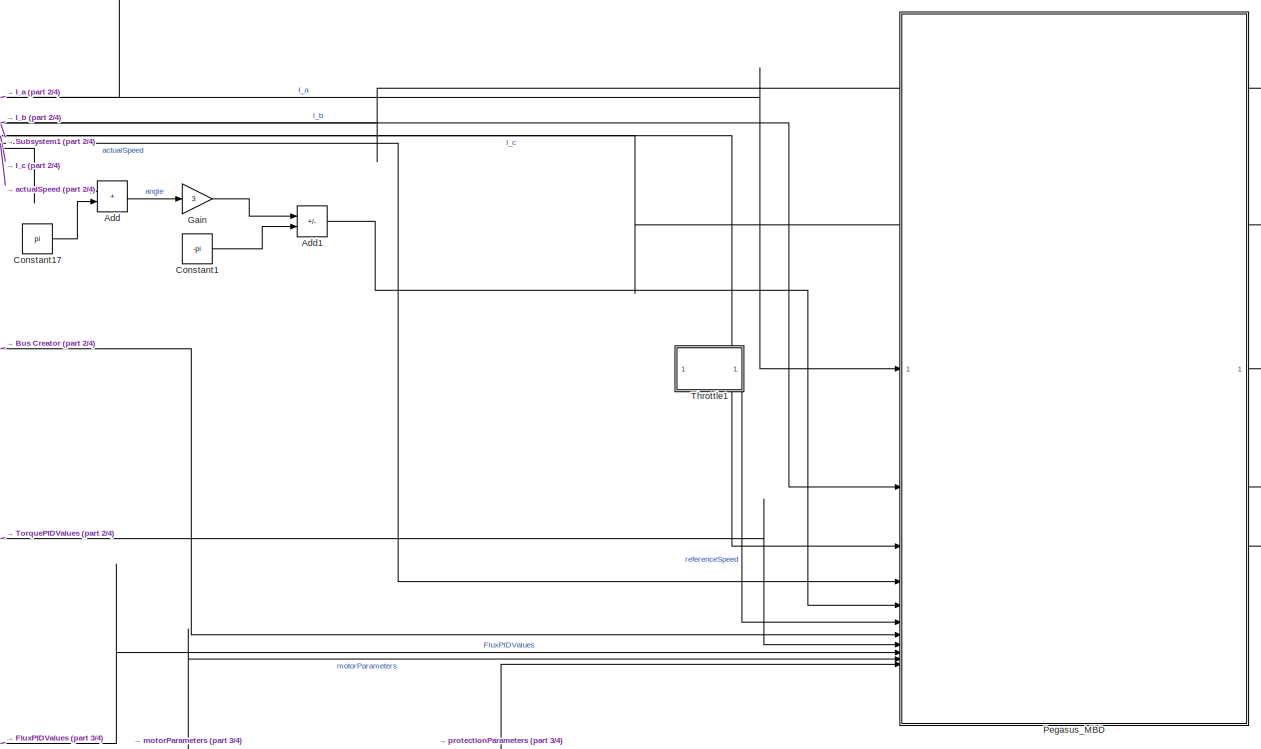
[diagram: root canvas - part 1/4, top center region]
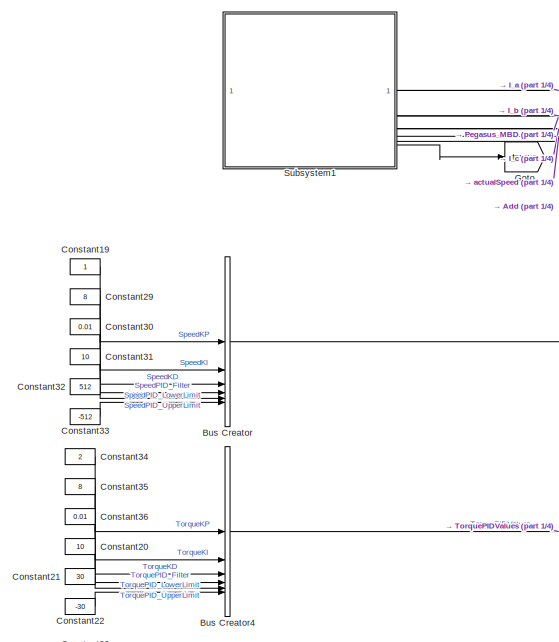
[diagram: root canvas - part 2/4, top left region]
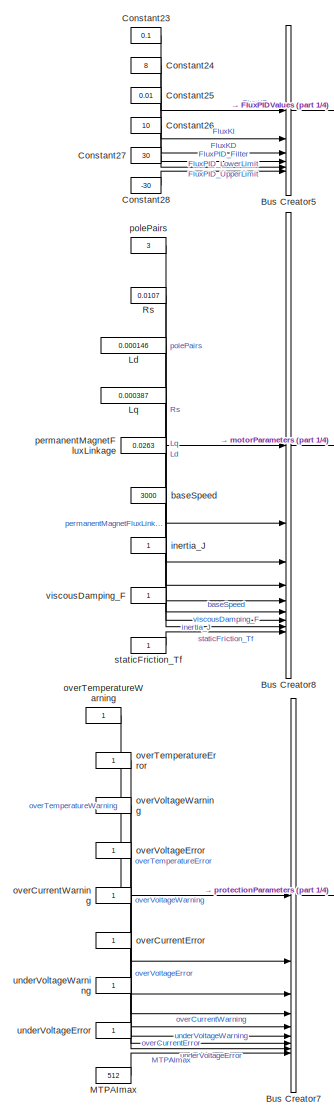
[diagram: root canvas - part 3/4, bottom left region]
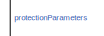
[diagram: root canvas - part 4/4, central region]
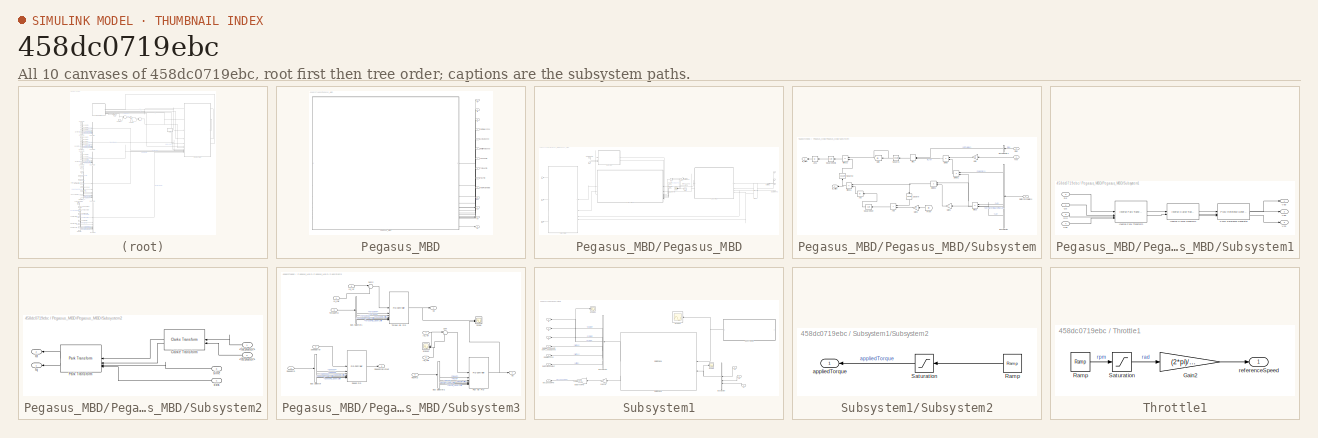
[diagram: thumbnail index - all 10 canvases of the model, root first then tree order]
MODEL slx_458dc0719ebc
KIND model
CONFIG AbsTol = auto
CONFIG EnableMultiTasking = off
CONFIG FixedStep = 10e-6
CONFIG MaxStep = auto
CONFIG MinStep = auto
CONFIG RelTol = 1e-3
CONFIG SampleTimeConstraint = Unconstrained
CONFIG SolverName = ode4
CONFIG StartTime = 0.0
CONFIG StopTime = 100
BLOCK [Sum] Add
  IconShape = rectangular
BLOCK [Sum] Add1
  IconShape = rectangular
  Inputs = +-
BLOCK [BusCreator] Bus Creator
  DisplayOption = bar
  InheritFromInputs = on
  Inputs = 6
BLOCK [BusCreator] Bus Creator4
  DisplayOption = bar
  InheritFromInputs = on
  Inputs = 6
BLOCK [BusCreator] Bus Creator5
  DisplayOption = bar
  InheritFromInputs = on
  Inputs = 6
BLOCK [BusCreator] Bus Creator7
  DisplayOption = bar
  InheritFromInputs = on
  Inputs = 9
BLOCK [BusCreator] Bus Creator8
  DisplayOption = bar
  InheritFromInputs = on
  Inputs = 9
BLOCK [Constant] Constant1
  OutDataTypeStr = single
  Value = -pi
BLOCK [Constant] Constant17
  OutDataTypeStr = single
  Value = pi
BLOCK [Constant] Constant19
BLOCK [Constant] Constant20
  Value = 10
BLOCK [Constant] Constant21
  Value = 30
BLOCK [Constant] Constant22
  Value = -30
BLOCK [Constant] Constant23
  Value = 0.1
BLOCK [Constant] Constant24
  Value = 8
BLOCK [Constant] Constant25
  Value = 0.01
BLOCK [Constant] Constant26
  Value = 10
BLOCK [Constant] Constant27
  Value = 30
BLOCK [Constant] Constant28
  Value = -30
BLOCK [Constant] Constant29
  Value = 8
BLOCK [Constant] Constant30
  Value = 0.01
BLOCK [Constant] Constant31
  Value = 10
BLOCK [Constant] Constant32
  Value = 512
BLOCK [Constant] Constant33
  Value = -512
BLOCK [Constant] Constant34
  Value = 2
BLOCK [Constant] Constant35
  Value = 8
BLOCK [Constant] Constant36
  Value = 0.01
BLOCK [Gain] Gain
  Gain = 3
BLOCK [Goto] Goto
  GotoTag = torque
  TagVisibility = global
BLOCK [Constant] Ld
  Value = 0.000146
BLOCK [Constant] Lq
  Value = 0.000387
BLOCK [Constant] MTPAImax
  Value = 512
BLOCK [SubSystem] Pegasus_MBD
BLOCK [Inport] Pegasus_MBD/FluxPID
  NameLocation = top
  Port = 9
BLOCK [Inport] Pegasus_MBD/Ia
  NameLocation = top
BLOCK [Inport] Pegasus_MBD/Ib
  NameLocation = top
  Port = 2
BLOCK [Inport] Pegasus_MBD/Ic
  NameLocation = top
  Port = 3
BLOCK [Inport] Pegasus_MBD/Imax
  NameLocation = top
  Port = 11
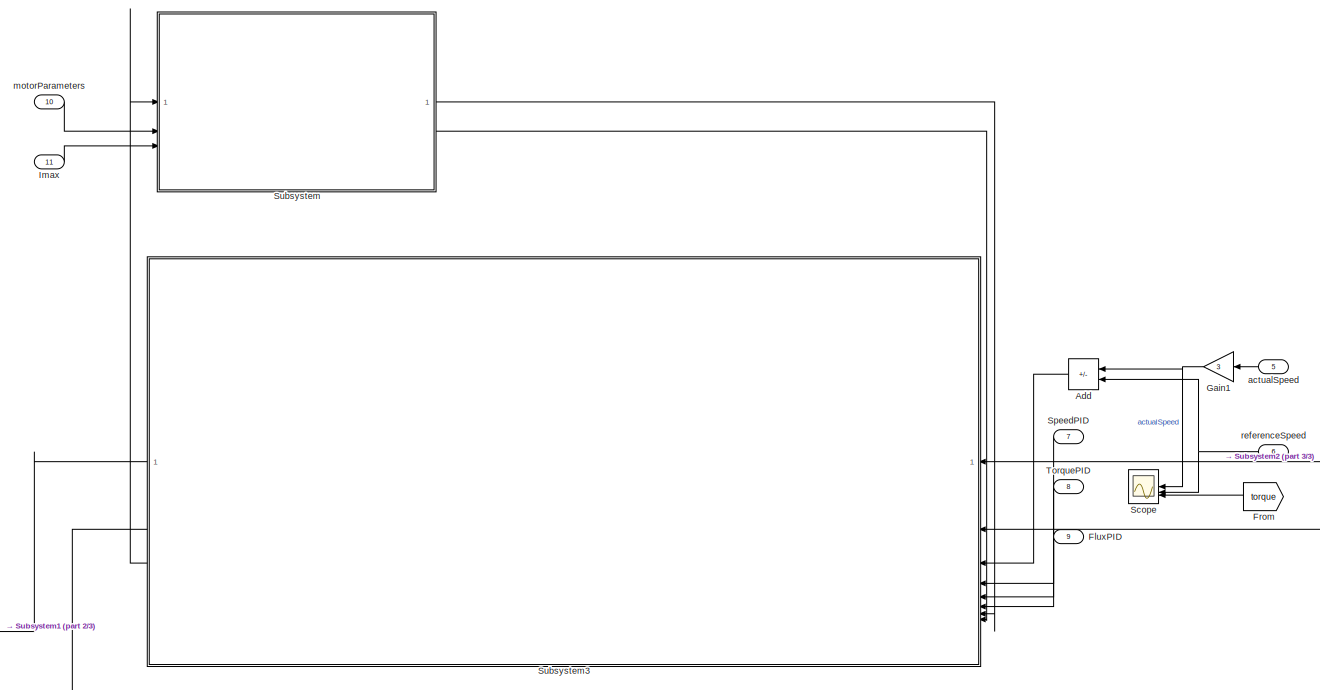
[diagram: Pegasus_MBD/Pegasus_MBD - part 1/3, central region]
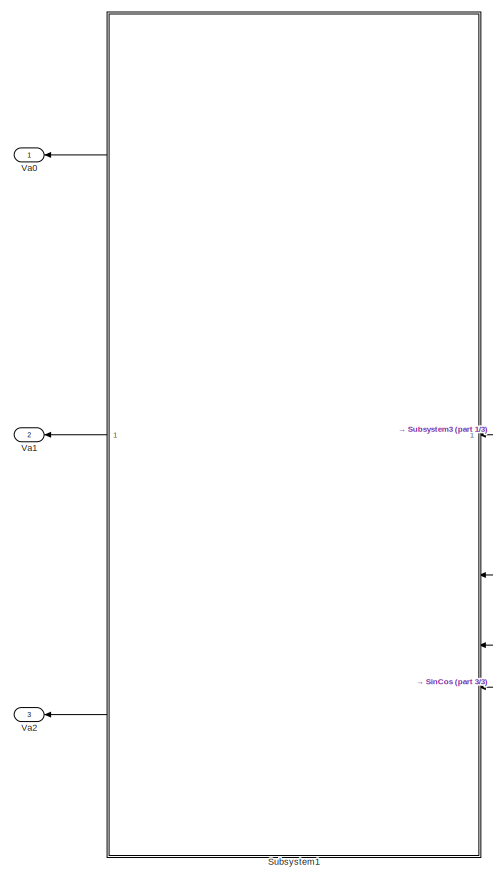
[diagram: Pegasus_MBD/Pegasus_MBD - part 2/3, left side, full height]
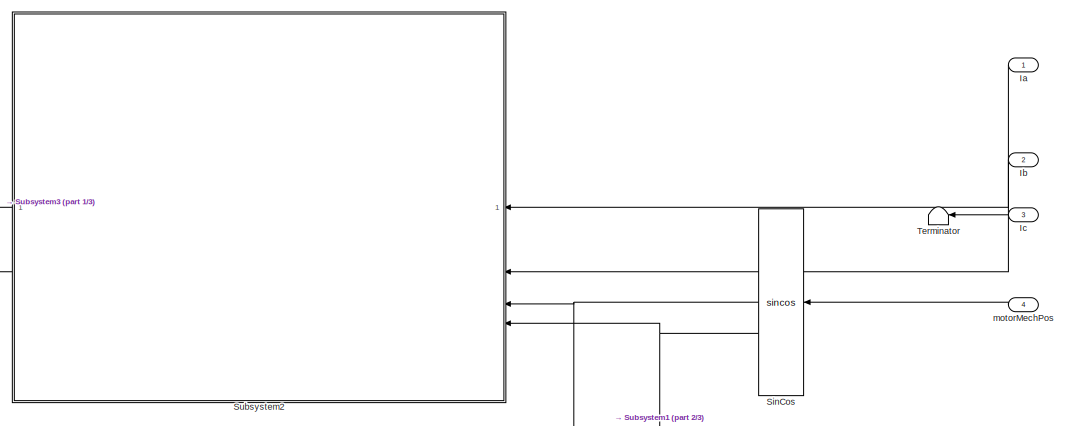
[diagram: Pegasus_MBD/Pegasus_MBD - part 3/3, middle right region]
BLOCK [SubSystem] Pegasus_MBD/Pegasus_MBD
  PortSchema = {"entries":[{"content":{"sides":[{"content":{},"type":"ConnectorPlacement.EquallySpacedRectSide","uuid":"6c18a17d-683c-442b-b8df-86db7e6c7e23"},{"content":{"connectorIds":["In1","In2","In3","In4","In5","In6","In7","In8","In9","In10","In11","Out1","Out2","Out3"],"side":"RIGHT"},"type":"ConnectorPlacement.EquallySpacedRectSide","uuid":"c94cf015-fa73-4928-9364-a1e0e2fbcdea"},{"content":{"side":"TOP"}...<+282ch>
BLOCK [Sum] Pegasus_MBD/Pegasus_MBD/Add
  IconShape = rectangular
  Inputs = -+
  NameLocation = top
BLOCK [Inport] Pegasus_MBD/Pegasus_MBD/FluxPID
  NameLocation = top
  Port = 9
BLOCK [From] Pegasus_MBD/Pegasus_MBD/From
  GotoTag = torque
  NameLocation = top
  TagVisibility = global
BLOCK [Gain] Pegasus_MBD/Pegasus_MBD/Gain1
  Gain = 3
  NameLocation = top
BLOCK [Inport] Pegasus_MBD/Pegasus_MBD/Ia
  NameLocation = top
BLOCK [Inport] Pegasus_MBD/Pegasus_MBD/Ib
  NameLocation = top
  Port = 2
BLOCK [Inport] Pegasus_MBD/Pegasus_MBD/Ic
  NameLocation = top
  Port = 3
BLOCK [Inport] Pegasus_MBD/Pegasus_MBD/Imax
  Port = 11
BLOCK [Scope] Pegasus_MBD/Pegasus_MBD/Scope
  Floating = off
  NameLocation = top
  NumInputPorts = 3
  ScopeSpecificationString = Simulink.scopes.TimeScopeBlockCfg('CurrentConfiguration', extmgr.ConfigurationSet(extmgr.Configuration('Core','General UI',true),extmgr.Configuration('Core','Source UI',true),extmgr.Configuration('Sources','WiredSimulink',true,'DataLoggingVariableName','ScopeData2'),extmgr.Configuration('Visuals','Time Domain',true,'SerializedDisplays',{struct('MinYLimReal','-34.69381','MaxYLimReal','312.24427','Y...<+1641ch>
BLOCK [Trigonometry] Pegasus_MBD/Pegasus_MBD/SinCos
  NameLocation = top
  Operator = sincos
BLOCK [Inport] Pegasus_MBD/Pegasus_MBD/SpeedPID
  NameLocation = top
  Port = 7
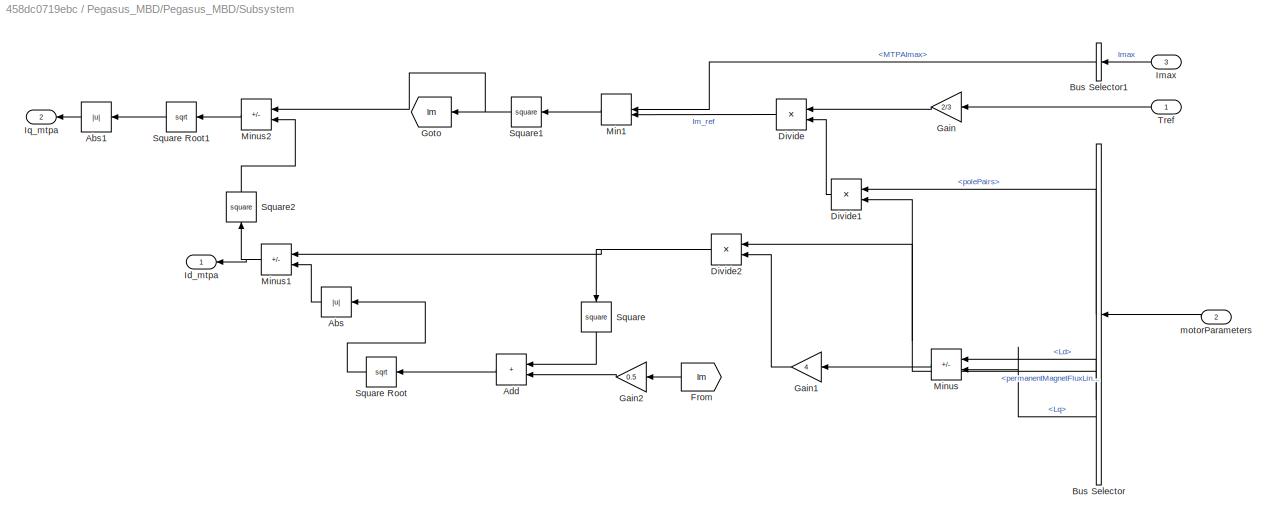
BLOCK [SubSystem] Pegasus_MBD/Pegasus_MBD/Subsystem
BLOCK [Abs] Pegasus_MBD/Pegasus_MBD/Subsystem/Abs
  NameLocation = top
  SaturateOnIntegerOverflow = off
BLOCK [Abs] Pegasus_MBD/Pegasus_MBD/Subsystem/Abs1
  NameLocation = top
  SaturateOnIntegerOverflow = off
BLOCK [Sum] Pegasus_MBD/Pegasus_MBD/Subsystem/Add
  IconShape = rectangular
  NameLocation = top
BLOCK [BusSelector] Pegasus_MBD/Pegasus_MBD/Subsystem/Bus Selector
  NameLocation = top
  OutputSignals = polePairs,permanentMagnetFluxLinkage,Ld,Lq
BLOCK [BusSelector] Pegasus_MBD/Pegasus_MBD/Subsystem/Bus Selector1
  NameLocation = top
  OutputSignals = MTPAImax
BLOCK [Product] Pegasus_MBD/Pegasus_MBD/Subsystem/Divide
  Inputs = */
  NameLocation = top
BLOCK [Product] Pegasus_MBD/Pegasus_MBD/Subsystem/Divide1
  Inputs = **
  NameLocation = top
BLOCK [Product] Pegasus_MBD/Pegasus_MBD/Subsystem/Divide2
  Inputs = */
  NameLocation = top
BLOCK [From] Pegasus_MBD/Pegasus_MBD/Subsystem/From
  GotoTag = Im
  NameLocation = top
BLOCK [Gain] Pegasus_MBD/Pegasus_MBD/Subsystem/Gain
  Gain = 2/3
  NameLocation = top
BLOCK [Gain] Pegasus_MBD/Pegasus_MBD/Subsystem/Gain1
  Gain = 4
  NameLocation = top
BLOCK [Gain] Pegasus_MBD/Pegasus_MBD/Subsystem/Gain2
  Gain = 0.5
  NameLocation = top
BLOCK [Goto] Pegasus_MBD/Pegasus_MBD/Subsystem/Goto
  GotoTag = Im
  NameLocation = top
BLOCK [Outport] Pegasus_MBD/Pegasus_MBD/Subsystem/Id_mtpa
  NameLocation = top
BLOCK [Inport] Pegasus_MBD/Pegasus_MBD/Subsystem/Imax
  NameLocation = top
  Port = 3
BLOCK [Outport] Pegasus_MBD/Pegasus_MBD/Subsystem/Iq_mtpa
  NameLocation = top
  Port = 2
BLOCK [MinMax] Pegasus_MBD/Pegasus_MBD/Subsystem/Min1
  Inputs = 2
  NameLocation = top
BLOCK [Sum] Pegasus_MBD/Pegasus_MBD/Subsystem/Minus
  IconShape = rectangular
  Inputs = -+
  NameLocation = top
BLOCK [Sum] Pegasus_MBD/Pegasus_MBD/Subsystem/Minus1
  IconShape = rectangular
  Inputs = +-
  NameLocation = top
BLOCK [Sum] Pegasus_MBD/Pegasus_MBD/Subsystem/Minus2
  IconShape = rectangular
  Inputs = +-
  NameLocation = top
BLOCK [Math] Pegasus_MBD/Pegasus_MBD/Subsystem/Square
  NameLocation = left
  Operator = square
BLOCK [Sqrt] Pegasus_MBD/Pegasus_MBD/Subsystem/Square Root
  NameLocation = top
BLOCK [Sqrt] Pegasus_MBD/Pegasus_MBD/Subsystem/Square Root1
  NameLocation = top
BLOCK [Math] Pegasus_MBD/Pegasus_MBD/Subsystem/Square1
  NameLocation = top
  Operator = square
BLOCK [Math] Pegasus_MBD/Pegasus_MBD/Subsystem/Square2
  NameLocation = right
  Operator = square
BLOCK [Inport] Pegasus_MBD/Pegasus_MBD/Subsystem/Tref
  NameLocation = top
BLOCK [Inport] Pegasus_MBD/Pegasus_MBD/Subsystem/motorParameters
  NameLocation = top
  Port = 2
BLOCK [SubSystem] Pegasus_MBD/Pegasus_MBD/Subsystem1
  NameLocation = top
BLOCK [Inport] Pegasus_MBD/Pegasus_MBD/Subsystem1/Cos
  Port = 4
BLOCK [Inport] Pegasus_MBD/Pegasus_MBD/Subsystem1/Ds
  Port = 2
BLOCK [Reference] Pegasus_MBD/Pegasus_MBD/Subsystem1/Inverse Clarke Transform  REF=mcbcontrolslib/Inverse Clarke Transform
  SourceBlock = mcbcontrolslib/Inverse Clarke Transform
  SourceType = Inverse Clarke Transform
BLOCK [Reference] Pegasus_MBD/Pegasus_MBD/Subsystem1/Inverse Park Transform  REF=mcbcontrolslib/Inverse Park Transform
  SourceBlock = mcbcontrolslib/Inverse Park Transform
  SourceType = Inverse Park Transform
BLOCK [Reference] Pegasus_MBD/Pegasus_MBD/Subsystem1/PWM Reference Generator  REF=mcbcontrolslib/PWM Reference Generator
  SourceBlock = mcbcontrolslib/PWM Reference Generator
  SourceType = PWM Modulation
BLOCK [Inport] Pegasus_MBD/Pegasus_MBD/Subsystem1/Qs
BLOCK [Inport] Pegasus_MBD/Pegasus_MBD/Subsystem1/Sin
  Port = 3
BLOCK [Outport] Pegasus_MBD/Pegasus_MBD/Subsystem1/Va0
BLOCK [Outport] Pegasus_MBD/Pegasus_MBD/Subsystem1/Vb0
  Port = 2
BLOCK [Outport] Pegasus_MBD/Pegasus_MBD/Subsystem1/Vc0
  Port = 3
BLOCK [SubSystem] Pegasus_MBD/Pegasus_MBD/Subsystem2
  NameLocation = top
BLOCK [Inport] Pegasus_MBD/Pegasus_MBD/Subsystem2/<IaStator>
BLOCK [Inport] Pegasus_MBD/Pegasus_MBD/Subsystem2/<IbStator>
  Port = 2
BLOCK [Reference] Pegasus_MBD/Pegasus_MBD/Subsystem2/Clarke Transform  REF=mcbcontrolslib/Clarke Transform
  NameLocation = top
  SourceBlock = mcbcontrolslib/Clarke Transform
  SourceType = Clarke Transform
BLOCK [Outport] Pegasus_MBD/Pegasus_MBD/Subsystem2/Id
  NameLocation = top
  Port = 2
BLOCK [Outport] Pegasus_MBD/Pegasus_MBD/Subsystem2/Iq
  NameLocation = top
BLOCK [Reference] Pegasus_MBD/Pegasus_MBD/Subsystem2/Park Transform  REF=mcbcontrolslib/Park Transform
  NameLocation = top
  SourceBlock = mcbcontrolslib/Park Transform
  SourceType = Park Transform
BLOCK [Inport] Pegasus_MBD/Pegasus_MBD/Subsystem2/cos
  NameLocation = top
  Port = 4
BLOCK [Inport] Pegasus_MBD/Pegasus_MBD/Subsystem2/sine
  NameLocation = top
  Port = 3
BLOCK [SubSystem] Pegasus_MBD/Pegasus_MBD/Subsystem3
  NameLocation = top
BLOCK [BusSelector] Pegasus_MBD/Pegasus_MBD/Subsystem3/Bus Selector
  OutputSignals = SpeedKP,SpeedKI,SpeedKD,SpeedPID_Filter,SpeedPID_UpperLimit,SpeedPID_LowerLimit
BLOCK [BusSelector] Pegasus_MBD/Pegasus_MBD/Subsystem3/Bus Selector1
  OutputSignals = TorqueKP,TorqueKI,TorqueKD,TorquePID_Filter,TorquePID_UpperLimit,TorquePID_LowerLimit
BLOCK [BusSelector] Pegasus_MBD/Pegasus_MBD/Subsystem3/Bus Selector2
  OutputSignals = FluxKP,FluxKI,FluxKD,FluxPID_Filter,FluxPID_UpperLimit,FluxPID_LowerLimit
BLOCK [Reference] Pegasus_MBD/Pegasus_MBD/Subsystem3/Flux (id) PID  REF=slpidlib/PID Controller
  SourceBlock = slpidlib/PID Controller
  SourceType = PID 1dof
BLOCK [Inport] Pegasus_MBD/Pegasus_MBD/Subsystem3/FluxPID
  Port = 6
BLOCK [Inport] Pegasus_MBD/Pegasus_MBD/Subsystem3/Id_calc
  NameLocation = top
  Port = 2
BLOCK [Inport] Pegasus_MBD/Pegasus_MBD/Subsystem3/Id_ref
  Port = 7
BLOCK [Inport] Pegasus_MBD/Pegasus_MBD/Subsystem3/Iq_calc
  NameLocation = top
BLOCK [Inport] Pegasus_MBD/Pegasus_MBD/Subsystem3/Iq_ref
  Port = 8
BLOCK [Scope] Pegasus_MBD/Pegasus_MBD/Subsystem3/Scope
  Floating = off
  NumInputPorts = 2
  ScopeSpecificationString = Simulink.scopes.TimeScopeBlockCfg('CurrentConfiguration', extmgr.ConfigurationSet(extmgr.Configuration('Core','General UI',true),extmgr.Configuration('Core','Source UI',true),extmgr.Configuration('Sources','WiredSimulink',true,'DataLoggingVariableName','ScopeData1'),extmgr.Configuration('Visuals','Time Domain',true,'SerializedDisplays',{struct('MinYLimReal','-14.7928','MaxYLimReal','8.76997','YLab...<+1506ch>
BLOCK [Scope] Pegasus_MBD/Pegasus_MBD/Subsystem3/Scope2
  Floating = off
  NameLocation = top
  NumInputPorts = 2
  ScopeSpecificationString = Simulink.scopes.TimeScopeBlockCfg('CurrentConfiguration', extmgr.ConfigurationSet(extmgr.Configuration('Core','General UI',true),extmgr.Configuration('Core','Source UI',true),extmgr.Configuration('Sources','WiredSimulink',true,'DataLoggingVariableName','ScopeData2'),extmgr.Configuration('Visuals','Time Domain',true,'SerializedDisplays',{struct('MinYLimReal','-1.85747','MaxYLimReal','0.20639','YLab...<+1537ch>
BLOCK [Reference] Pegasus_MBD/Pegasus_MBD/Subsystem3/Speed PID  REF=slpidlib/PID Controller
  SourceBlock = slpidlib/PID Controller
  SourceType = PID 1dof
BLOCK [Inport] Pegasus_MBD/Pegasus_MBD/Subsystem3/SpeedPID
  Port = 4
BLOCK [Outport] Pegasus_MBD/Pegasus_MBD/Subsystem3/SpeedPIDOutput
  Port = 3
BLOCK [Sum] Pegasus_MBD/Pegasus_MBD/Subsystem3/Sum
  Inputs = |+-
BLOCK [Sum] Pegasus_MBD/Pegasus_MBD/Subsystem3/Sum2
  Inputs = |+-
BLOCK [Reference] Pegasus_MBD/Pegasus_MBD/Subsystem3/Torque (iq) PID  REF=slpidlib/PID Controller
  SourceBlock = slpidlib/PID Controller
  SourceType = PID 1dof
BLOCK [Inport] Pegasus_MBD/Pegasus_MBD/Subsystem3/TorquePID
  Port = 5
BLOCK [Outport] Pegasus_MBD/Pegasus_MBD/Subsystem3/Vd
  NameLocation = top
  Port = 2
BLOCK [Outport] Pegasus_MBD/Pegasus_MBD/Subsystem3/Vq
  NameLocation = top
BLOCK [Inport] Pegasus_MBD/Pegasus_MBD/Subsystem3/speedError
  Port = 3
BLOCK [Terminator] Pegasus_MBD/Pegasus_MBD/Terminator
  NameLocation = top
BLOCK [Inport] Pegasus_MBD/Pegasus_MBD/TorquePID
  NameLocation = top
  Port = 8
BLOCK [Outport] Pegasus_MBD/Pegasus_MBD/Va0
  NameLocation = top
BLOCK [Outport] Pegasus_MBD/Pegasus_MBD/Va1
  NameLocation = top
  Port = 2
BLOCK [Outport] Pegasus_MBD/Pegasus_MBD/Va2
  NameLocation = top
  Port = 3
BLOCK [Inport] Pegasus_MBD/Pegasus_MBD/actualSpeed
  NameLocation = top
  Port = 5
BLOCK [Inport] Pegasus_MBD/Pegasus_MBD/motorMechPos
  NameLocation = top
  Port = 4
BLOCK [Inport] Pegasus_MBD/Pegasus_MBD/motorParameters
  Port = 10
BLOCK [Inport] Pegasus_MBD/Pegasus_MBD/referenceSpeed
  NameLocation = top
  Port = 6
BLOCK [Inport] Pegasus_MBD/SpeedPID
  NameLocation = top
  Port = 7
BLOCK [Inport] Pegasus_MBD/TorquePID
  NameLocation = top
  Port = 8
BLOCK [Outport] Pegasus_MBD/Va
  NameLocation = top
BLOCK [Outport] Pegasus_MBD/Vb
  NameLocation = top
  Port = 2
BLOCK [Outport] Pegasus_MBD/Vc
  NameLocation = top
  Port = 3
BLOCK [Inport] Pegasus_MBD/actualSpeed
  NameLocation = top
  Port = 4
BLOCK [Inport] Pegasus_MBD/motorMechPos
  NameLocation = top
  Port = 5
BLOCK [Inport] Pegasus_MBD/motorParameters
  NameLocation = top
  Port = 10
BLOCK [Inport] Pegasus_MBD/throttleRefSpeed
  Port = 6
BLOCK [Constant] Rs
  Value = 0.0107
BLOCK [SubSystem] Subsystem1
  PortSchema = {"entries":[{"content":{"sides":[{"content":{},"type":"ConnectorPlacement.EquallySpacedRectSide","uuid":"d655f364-4693-4d11-886b-c83aead6f168"},{"content":{"connectorIds":["In1","In2","In3","Out1","Out2","Out3","Out4","Out5","Out6","Out7"],"side":"RIGHT"},"type":"ConnectorPlacement.EquallySpacedRectSide","uuid":"4bb2d958-8bbb-488b-8d13-b01e05b3c8b3"},{"content":{"side":"TOP"},"type":"ConnectorPlac...<+386ch>
BLOCK [BusCreator] Subsystem1/Bus Creator
  DisplayOption = bar
  InheritFromInputs = on
  Inputs = 3
  NameLocation = top
BLOCK [BusSelector] Subsystem1/Bus Selector
  NameLocation = top
  OutputSignals = IaStator,IbStator,IcStator,MtrSpd,MtrPos,MtrTrq
BLOCK [Outport] Subsystem1/Ia
  NameLocation = top
BLOCK [Outport] Subsystem1/Ib
  NameLocation = top
  Port = 2
BLOCK [Outport] Subsystem1/Ic
  NameLocation = top
  Port = 3
BLOCK [Reference] Subsystem1/Interior PMSM  REF=autolibpmsminterior/Interior PMSM
  NameLocation = top
  SourceBlock = autolibpmsminterior/Interior PMSM
  SourceType = Interior PMSM
BLOCK [Scope] Subsystem1/Scope
  Floating = off
  NumInputPorts = 1
  ScopeSpecificationString = Simulink.scopes.TimeScopeBlockCfg('CurrentConfiguration', extmgr.ConfigurationSet(extmgr.Configuration('Core','General UI',true),extmgr.Configuration('Core','Source UI',true),extmgr.Configuration('Sources','WiredSimulink',true,'DataLoggingVariableName','ScopeData3'),extmgr.Configuration('Visuals','Time Domain',true,'SerializedDisplays',{struct('MinYLimReal','-23.92748','MaxYLimReal','23.92748','YL...<+1512ch>
BLOCK [Scope] Subsystem1/Scope1
  Floating = off
  NumInputPorts = 1
  ScopeSpecificationString = Simulink.scopes.TimeScopeBlockCfg('CurrentConfiguration', extmgr.ConfigurationSet(extmgr.Configuration('Core','General UI',true),extmgr.Configuration('Core','Source UI',true),extmgr.Configuration('Sources','WiredSimulink',true,'DataLoggingVariableName','ScopeData1'),extmgr.Configuration('Visuals','Time Domain',true,'SerializedDisplays',{struct('MinYLimReal','-250.32332','MaxYLimReal','250.13564','...<+1518ch>
BLOCK [Scope] Subsystem1/Scope2
  Floating = off
  NameLocation = top
  NumInputPorts = 1
  ScopeSpecificationString = Simulink.scopes.TimeScopeBlockCfg('CurrentConfiguration', extmgr.ConfigurationSet(extmgr.Configuration('Core','General UI',true),extmgr.Configuration('Core','Source UI',true),extmgr.Configuration('Sources','WiredSimulink',true,'DataLoggingVariableName','ScopeData1'),extmgr.Configuration('Visuals','Time Domain',true,'SerializedDisplays',{struct('MinYLimReal','-3.45469','MaxYLimReal','31.09224','YLa...<+1462ch>
BLOCK [SubSystem] Subsystem1/Subsystem2
  NameLocation = top
BLOCK [Reference] Subsystem1/Subsystem2/Ramp  REF=simulink/Sources/Ramp
  NameLocation = top
  SourceBlock = simulink/Sources/Ramp
  SourceType = Ramp
BLOCK [Saturate] Subsystem1/Subsystem2/Saturation
  NameLocation = top
  UpperLimit = 50
BLOCK [Outport] Subsystem1/Subsystem2/appliedTorque
BLOCK [Inport] Subsystem1/Va
  NameLocation = top
  Port = 3
BLOCK [Inport] Subsystem1/Vb
  NameLocation = top
  Port = 2
BLOCK [Inport] Subsystem1/Vc
  NameLocation = top
BLOCK [Outport] Subsystem1/elecSpeedRPM
  NameLocation = top
  Port = 7
BLOCK [Outport] Subsystem1/motorMechPos
  NameLocation = top
  Port = 5
BLOCK [Outport] Subsystem1/motorMechSpeedRadPs_actualSpeed
  NameLocation = top
  Port = 4
BLOCK [Outport] Subsystem1/motorTorqueOutput
  NameLocation = top
  Port = 6
BLOCK [Gain] Subsystem1/polePair
  Gain = 3
  NameLocation = top
BLOCK [Gain] Subsystem1/radianToRPM
  Gain = 60/(2*pi)
  NameLocation = top
BLOCK [SubSystem] Throttle1
BLOCK [Gain] Throttle1/Gain2
  Gain = (2*pi)/60
BLOCK [Reference] Throttle1/Ramp  REF=simulink/Sources/Ramp
  SourceBlock = simulink/Sources/Ramp
  SourceType = Ramp
BLOCK [Saturate] Throttle1/Saturation
  UpperLimit = 2650
BLOCK [Outport] Throttle1/referenceSpeed
BLOCK [Constant] baseSpeed
  Value = 3000
BLOCK [Constant] inertia_J
BLOCK [Constant] overCurrentError
BLOCK [Constant] overCurrentWarning
BLOCK [Constant] overTemperatureError
BLOCK [Constant] overTemperatureWarning
BLOCK [Constant] overVoltageError
BLOCK [Constant] overVoltageWarning
BLOCK [Constant] permanentMagnetFluxLinkage
  Value = 0.0263
BLOCK [Constant] polePairs
  Value = 3
BLOCK [Constant] staticFriction_Tf
BLOCK [Constant] underVoltageError
BLOCK [Constant] underVoltageWarning
BLOCK [Constant] viscousDamping_F
LINE Add1:1 -> Pegasus_MBD:5
LINE Add:1 -> Gain:1
LINE Bus Creator4:1 -> Pegasus_MBD:8
LINE Bus Creator5:1 -> Pegasus_MBD:9
LINE Bus Creator7:1 -> Pegasus_MBD:11
LINE Bus Creator8:1 -> Pegasus_MBD:10
LINE Bus Creator:1 -> Pegasus_MBD:7
LINE Constant17:1 -> Add:2
LINE Constant19:1 -> Bus Creator:1
LINE Constant1:1 -> Add1:2
LINE Constant20:1 -> Bus Creator4:4
LINE Constant21:1 -> Bus Creator4:5
LINE Constant22:1 -> Bus Creator4:6
LINE Constant23:1 -> Bus Creator5:1
LINE Constant24:1 -> Bus Creator5:2
LINE Constant25:1 -> Bus Creator5:3
LINE Constant26:1 -> Bus Creator5:4
LINE Constant27:1 -> Bus Creator5:5
LINE Constant28:1 -> Bus Creator5:6
LINE Constant29:1 -> Bus Creator:2
LINE Constant30:1 -> Bus Creator:3
LINE Constant31:1 -> Bus Creator:4
LINE Constant32:1 -> Bus Creator:5
LINE Constant33:1 -> Bus Creator:6
LINE Constant34:1 -> Bus Creator4:1
LINE Constant35:1 -> Bus Creator4:2
LINE Constant36:1 -> Bus Creator4:3
LINE Gain:1 -> Add1:1
LINE Ld:1 -> Bus Creator8:3
LINE Lq:1 -> Bus Creator8:4
LINE MTPAImax:1 -> Bus Creator7:9
LINE Pegasus_MBD/FluxPID:1 -> Pegasus_MBD/Pegasus_MBD:9
LINE Pegasus_MBD/Ia:1 -> Pegasus_MBD/Pegasus_MBD:1
LINE Pegasus_MBD/Ib:1 -> Pegasus_MBD/Pegasus_MBD:2
LINE Pegasus_MBD/Ic:1 -> Pegasus_MBD/Pegasus_MBD:3
LINE Pegasus_MBD/Imax:1 -> Pegasus_MBD/Pegasus_MBD:11
LINE Pegasus_MBD/Pegasus_MBD/Add:1 -> Pegasus_MBD/Pegasus_MBD/Subsystem3:3
LINE Pegasus_MBD/Pegasus_MBD/FluxPID:1 -> Pegasus_MBD/Pegasus_MBD/Subsystem3:6
LINE Pegasus_MBD/Pegasus_MBD/From:1 -> Pegasus_MBD/Pegasus_MBD/Scope:3
NET Pegasus_MBD/Pegasus_MBD/Gain1:1 -> Pegasus_MBD/Pegasus_MBD/Add:1, Pegasus_MBD/Pegasus_MBD/Scope:1
LINE Pegasus_MBD/Pegasus_MBD/Ia:1 -> Pegasus_MBD/Pegasus_MBD/Subsystem2:1
LINE Pegasus_MBD/Pegasus_MBD/Ib:1 -> Pegasus_MBD/Pegasus_MBD/Subsystem2:2
LINE Pegasus_MBD/Pegasus_MBD/Ic:1 -> Pegasus_MBD/Pegasus_MBD/Terminator:1
LINE Pegasus_MBD/Pegasus_MBD/Imax:1 -> Pegasus_MBD/Pegasus_MBD/Subsystem:3
NET Pegasus_MBD/Pegasus_MBD/SinCos:1 -> Pegasus_MBD/Pegasus_MBD/Subsystem1:3, Pegasus_MBD/Pegasus_MBD/Subsystem2:3
NET Pegasus_MBD/Pegasus_MBD/SinCos:2 -> Pegasus_MBD/Pegasus_MBD/Subsystem1:4, Pegasus_MBD/Pegasus_MBD/Subsystem2:4
LINE Pegasus_MBD/Pegasus_MBD/SpeedPID:1 -> Pegasus_MBD/Pegasus_MBD/Subsystem3:4
LINE Pegasus_MBD/Pegasus_MBD/Subsystem/Abs1:1 -> Pegasus_MBD/Pegasus_MBD/Subsystem/Iq_mtpa:1
LINE Pegasus_MBD/Pegasus_MBD/Subsystem/Abs:1 -> Pegasus_MBD/Pegasus_MBD/Subsystem/Minus1:2
LINE Pegasus_MBD/Pegasus_MBD/Subsystem/Add:1 -> Pegasus_MBD/Pegasus_MBD/Subsystem/Square Root:1
LINE Pegasus_MBD/Pegasus_MBD/Subsystem/Bus Selector1:1 -> Pegasus_MBD/Pegasus_MBD/Subsystem/Min1:1
LINE Pegasus_MBD/Pegasus_MBD/Subsystem/Bus Selector:1 -> Pegasus_MBD/Pegasus_MBD/Subsystem/Divide1:1
NET Pegasus_MBD/Pegasus_MBD/Subsystem/Bus Selector:2 -> Pegasus_MBD/Pegasus_MBD/Subsystem/Divide1:2, Pegasus_MBD/Pegasus_MBD/Subsystem/Divide2:1
LINE Pegasus_MBD/Pegasus_MBD/Subsystem/Bus Selector:3 -> Pegasus_MBD/Pegasus_MBD/Subsystem/Minus:1
LINE Pegasus_MBD/Pegasus_MBD/Subsystem/Bus Selector:4 -> Pegasus_MBD/Pegasus_MBD/Subsystem/Minus:2
LINE Pegasus_MBD/Pegasus_MBD/Subsystem/Divide1:1 -> Pegasus_MBD/Pegasus_MBD/Subsystem/Divide:2
NET Pegasus_MBD/Pegasus_MBD/Subsystem/Divide2:1 -> Pegasus_MBD/Pegasus_MBD/Subsystem/Minus1:1, Pegasus_MBD/Pegasus_MBD/Subsystem/Square:1
LINE Pegasus_MBD/Pegasus_MBD/Subsystem/Divide:1 -> Pegasus_MBD/Pegasus_MBD/Subsystem/Min1:2
LINE Pegasus_MBD/Pegasus_MBD/Subsystem/From:1 -> Pegasus_MBD/Pegasus_MBD/Subsystem/Gain2:1
LINE Pegasus_MBD/Pegasus_MBD/Subsystem/Gain1:1 -> Pegasus_MBD/Pegasus_MBD/Subsystem/Divide2:2
LINE Pegasus_MBD/Pegasus_MBD/Subsystem/Gain2:1 -> Pegasus_MBD/Pegasus_MBD/Subsystem/Add:2
LINE Pegasus_MBD/Pegasus_MBD/Subsystem/Gain:1 -> Pegasus_MBD/Pegasus_MBD/Subsystem/Divide:1
LINE Pegasus_MBD/Pegasus_MBD/Subsystem/Imax:1 -> Pegasus_MBD/Pegasus_MBD/Subsystem/Bus Selector1:1
LINE Pegasus_MBD/Pegasus_MBD/Subsystem/Min1:1 -> Pegasus_MBD/Pegasus_MBD/Subsystem/Square1:1
NET Pegasus_MBD/Pegasus_MBD/Subsystem/Minus1:1 -> Pegasus_MBD/Pegasus_MBD/Subsystem/Id_mtpa:1, Pegasus_MBD/Pegasus_MBD/Subsystem/Square2:1
LINE Pegasus_MBD/Pegasus_MBD/Subsystem/Minus2:1 -> Pegasus_MBD/Pegasus_MBD/Subsystem/Square Root1:1
LINE Pegasus_MBD/Pegasus_MBD/Subsystem/Minus:1 -> Pegasus_MBD/Pegasus_MBD/Subsystem/Gain1:1
LINE Pegasus_MBD/Pegasus_MBD/Subsystem/Square Root1:1 -> Pegasus_MBD/Pegasus_MBD/Subsystem/Abs1:1
LINE Pegasus_MBD/Pegasus_MBD/Subsystem/Square Root:1 -> Pegasus_MBD/Pegasus_MBD/Subsystem/Abs:1
NET Pegasus_MBD/Pegasus_MBD/Subsystem/Square1:1 -> Pegasus_MBD/Pegasus_MBD/Subsystem/Goto:1, Pegasus_MBD/Pegasus_MBD/Subsystem/Minus2:1
LINE Pegasus_MBD/Pegasus_MBD/Subsystem/Square2:1 -> Pegasus_MBD/Pegasus_MBD/Subsystem/Minus2:2
LINE Pegasus_MBD/Pegasus_MBD/Subsystem/Square:1 -> Pegasus_MBD/Pegasus_MBD/Subsystem/Add:1
LINE Pegasus_MBD/Pegasus_MBD/Subsystem/Tref:1 -> Pegasus_MBD/Pegasus_MBD/Subsystem/Gain:1
LINE Pegasus_MBD/Pegasus_MBD/Subsystem/motorParameters:1 -> Pegasus_MBD/Pegasus_MBD/Subsystem/Bus Selector:1
LINE Pegasus_MBD/Pegasus_MBD/Subsystem1/Cos:1 -> Pegasus_MBD/Pegasus_MBD/Subsystem1/Inverse Park Transform:4
LINE Pegasus_MBD/Pegasus_MBD/Subsystem1/Ds:1 -> Pegasus_MBD/Pegasus_MBD/Subsystem1/Inverse Park Transform:1
LINE Pegasus_MBD/Pegasus_MBD/Subsystem1/Inverse Clarke Transform:1 -> Pegasus_MBD/Pegasus_MBD/Subsystem1/PWM Reference Generator:1
LINE Pegasus_MBD/Pegasus_MBD/Subsystem1/Inverse Clarke Transform:2 -> Pegasus_MBD/Pegasus_MBD/Subsystem1/PWM Reference Generator:2
LINE Pegasus_MBD/Pegasus_MBD/Subsystem1/Inverse Clarke Transform:3 -> Pegasus_MBD/Pegasus_MBD/Subsystem1/PWM Reference Generator:3
LINE Pegasus_MBD/Pegasus_MBD/Subsystem1/Inverse Park Transform:1 -> Pegasus_MBD/Pegasus_MBD/Subsystem1/Inverse Clarke Transform:1
LINE Pegasus_MBD/Pegasus_MBD/Subsystem1/Inverse Park Transform:2 -> Pegasus_MBD/Pegasus_MBD/Subsystem1/Inverse Clarke Transform:2
LINE Pegasus_MBD/Pegasus_MBD/Subsystem1/PWM Reference Generator:1 -> Pegasus_MBD/Pegasus_MBD/Subsystem1/Va0:1
LINE Pegasus_MBD/Pegasus_MBD/Subsystem1/PWM Reference Generator:2 -> Pegasus_MBD/Pegasus_MBD/Subsystem1/Vb0:1
LINE Pegasus_MBD/Pegasus_MBD/Subsystem1/PWM Reference Generator:3 -> Pegasus_MBD/Pegasus_MBD/Subsystem1/Vc0:1
LINE Pegasus_MBD/Pegasus_MBD/Subsystem1/Qs:1 -> Pegasus_MBD/Pegasus_MBD/Subsystem1/Inverse Park Transform:2
LINE Pegasus_MBD/Pegasus_MBD/Subsystem1/Sin:1 -> Pegasus_MBD/Pegasus_MBD/Subsystem1/Inverse Park Transform:3
LINE Pegasus_MBD/Pegasus_MBD/Subsystem1:1 -> Pegasus_MBD/Pegasus_MBD/Va0:1
LINE Pegasus_MBD/Pegasus_MBD/Subsystem1:2 -> Pegasus_MBD/Pegasus_MBD/Va1:1
LINE Pegasus_MBD/Pegasus_MBD/Subsystem1:3 -> Pegasus_MBD/Pegasus_MBD/Va2:1
LINE Pegasus_MBD/Pegasus_MBD/Subsystem2/<IaStator>:1 -> Pegasus_MBD/Pegasus_MBD/Subsystem2/Clarke Transform:1
LINE Pegasus_MBD/Pegasus_MBD/Subsystem2/<IbStator>:1 -> Pegasus_MBD/Pegasus_MBD/Subsystem2/Clarke Transform:2
LINE Pegasus_MBD/Pegasus_MBD/Subsystem2/Clarke Transform:1 -> Pegasus_MBD/Pegasus_MBD/Subsystem2/Park Transform:1
LINE Pegasus_MBD/Pegasus_MBD/Subsystem2/Clarke Transform:2 -> Pegasus_MBD/Pegasus_MBD/Subsystem2/Park Transform:2
LINE Pegasus_MBD/Pegasus_MBD/Subsystem2/Park Transform:1 -> Pegasus_MBD/Pegasus_MBD/Subsystem2/Id:1
LINE Pegasus_MBD/Pegasus_MBD/Subsystem2/Park Transform:2 -> Pegasus_MBD/Pegasus_MBD/Subsystem2/Iq:1
LINE Pegasus_MBD/Pegasus_MBD/Subsystem2/cos:1 -> Pegasus_MBD/Pegasus_MBD/Subsystem2/Park Transform:4
LINE Pegasus_MBD/Pegasus_MBD/Subsystem2/sine:1 -> Pegasus_MBD/Pegasus_MBD/Subsystem2/Park Transform:3
LINE Pegasus_MBD/Pegasus_MBD/Subsystem2:1 -> Pegasus_MBD/Pegasus_MBD/Subsystem3:1
LINE Pegasus_MBD/Pegasus_MBD/Subsystem2:2 -> Pegasus_MBD/Pegasus_MBD/Subsystem3:2
LINE Pegasus_MBD/Pegasus_MBD/Subsystem3/Bus Selector1:1 -> Pegasus_MBD/Pegasus_MBD/Subsystem3/Torque (iq) PID:2
LINE Pegasus_MBD/Pegasus_MBD/Subsystem3/Bus Selector1:2 -> Pegasus_MBD/Pegasus_MBD/Subsystem3/Torque (iq) PID:3
LINE Pegasus_MBD/Pegasus_MBD/Subsystem3/Bus Selector1:3 -> Pegasus_MBD/Pegasus_MBD/Subsystem3/Torque (iq) PID:4
LINE Pegasus_MBD/Pegasus_MBD/Subsystem3/Bus Selector1:4 -> Pegasus_MBD/Pegasus_MBD/Subsystem3/Torque (iq) PID:5
LINE Pegasus_MBD/Pegasus_MBD/Subsystem3/Bus Selector1:5 -> Pegasus_MBD/Pegasus_MBD/Subsystem3/Torque (iq) PID:6
LINE Pegasus_MBD/Pegasus_MBD/Subsystem3/Bus Selector1:6 -> Pegasus_MBD/Pegasus_MBD/Subsystem3/Torque (iq) PID:7
LINE Pegasus_MBD/Pegasus_MBD/Subsystem3/Bus Selector2:1 -> Pegasus_MBD/Pegasus_MBD/Subsystem3/Flux (id) PID:2
LINE Pegasus_MBD/Pegasus_MBD/Subsystem3/Bus Selector2:2 -> Pegasus_MBD/Pegasus_MBD/Subsystem3/Flux (id) PID:3
LINE Pegasus_MBD/Pegasus_MBD/Subsystem3/Bus Selector2:3 -> Pegasus_MBD/Pegasus_MBD/Subsystem3/Flux (id) PID:4
LINE Pegasus_MBD/Pegasus_MBD/Subsystem3/Bus Selector2:4 -> Pegasus_MBD/Pegasus_MBD/Subsystem3/Flux (id) PID:5
LINE Pegasus_MBD/Pegasus_MBD/Subsystem3/Bus Selector2:5 -> Pegasus_MBD/Pegasus_MBD/Subsystem3/Flux (id) PID:6
LINE Pegasus_MBD/Pegasus_MBD/Subsystem3/Bus Selector2:6 -> Pegasus_MBD/Pegasus_MBD/Subsystem3/Flux (id) PID:7
LINE Pegasus_MBD/Pegasus_MBD/Subsystem3/Bus Selector:1 -> Pegasus_MBD/Pegasus_MBD/Subsystem3/Speed PID:2
LINE Pegasus_MBD/Pegasus_MBD/Subsystem3/Bus Selector:2 -> Pegasus_MBD/Pegasus_MBD/Subsystem3/Speed PID:3
LINE Pegasus_MBD/Pegasus_MBD/Subsystem3/Bus Selector:3 -> Pegasus_MBD/Pegasus_MBD/Subsystem3/Speed PID:4
LINE Pegasus_MBD/Pegasus_MBD/Subsystem3/Bus Selector:4 -> Pegasus_MBD/Pegasus_MBD/Subsystem3/Speed PID:5
LINE Pegasus_MBD/Pegasus_MBD/Subsystem3/Bus Selector:5 -> Pegasus_MBD/Pegasus_MBD/Subsystem3/Speed PID:6
LINE Pegasus_MBD/Pegasus_MBD/Subsystem3/Bus Selector:6 -> Pegasus_MBD/Pegasus_MBD/Subsystem3/Speed PID:7
NET Pegasus_MBD/Pegasus_MBD/Subsystem3/Flux (id) PID:1 -> Pegasus_MBD/Pegasus_MBD/Subsystem3/Scope:2, Pegasus_MBD/Pegasus_MBD/Subsystem3/Vd:1
LINE Pegasus_MBD/Pegasus_MBD/Subsystem3/FluxPID:1 -> Pegasus_MBD/Pegasus_MBD/Subsystem3/Bus Selector2:1
NET Pegasus_MBD/Pegasus_MBD/Subsystem3/Id_calc:1 -> Pegasus_MBD/Pegasus_MBD/Subsystem3/Scope2:2, Pegasus_MBD/Pegasus_MBD/Subsystem3/Sum:2
NET Pegasus_MBD/Pegasus_MBD/Subsystem3/Id_ref:1 -> Pegasus_MBD/Pegasus_MBD/Subsystem3/Scope2:1, Pegasus_MBD/Pegasus_MBD/Subsystem3/Sum:1
LINE Pegasus_MBD/Pegasus_MBD/Subsystem3/Iq_calc:1 -> Pegasus_MBD/Pegasus_MBD/Subsystem3/Sum2:2
LINE Pegasus_MBD/Pegasus_MBD/Subsystem3/Iq_ref:1 -> Pegasus_MBD/Pegasus_MBD/Subsystem3/Sum2:1
LINE Pegasus_MBD/Pegasus_MBD/Subsystem3/Speed PID:1 -> Pegasus_MBD/Pegasus_MBD/Subsystem3/SpeedPIDOutput:1
LINE Pegasus_MBD/Pegasus_MBD/Subsystem3/SpeedPID:1 -> Pegasus_MBD/Pegasus_MBD/Subsystem3/Bus Selector:1
LINE Pegasus_MBD/Pegasus_MBD/Subsystem3/Sum2:1 -> Pegasus_MBD/Pegasus_MBD/Subsystem3/Torque (iq) PID:1
LINE Pegasus_MBD/Pegasus_MBD/Subsystem3/Sum:1 -> Pegasus_MBD/Pegasus_MBD/Subsystem3/Flux (id) PID:1
NET Pegasus_MBD/Pegasus_MBD/Subsystem3/Torque (iq) PID:1 -> Pegasus_MBD/Pegasus_MBD/Subsystem3/Scope:1, Pegasus_MBD/Pegasus_MBD/Subsystem3/Vq:1
LINE Pegasus_MBD/Pegasus_MBD/Subsystem3/TorquePID:1 -> Pegasus_MBD/Pegasus_MBD/Subsystem3/Bus Selector1:1
LINE Pegasus_MBD/Pegasus_MBD/Subsystem3/speedError:1 -> Pegasus_MBD/Pegasus_MBD/Subsystem3/Speed PID:1
LINE Pegasus_MBD/Pegasus_MBD/Subsystem3:1 -> Pegasus_MBD/Pegasus_MBD/Subsystem1:1
LINE Pegasus_MBD/Pegasus_MBD/Subsystem3:2 -> Pegasus_MBD/Pegasus_MBD/Subsystem1:2
LINE Pegasus_MBD/Pegasus_MBD/Subsystem3:3 -> Pegasus_MBD/Pegasus_MBD/Subsystem:1
LINE Pegasus_MBD/Pegasus_MBD/Subsystem:1 -> Pegasus_MBD/Pegasus_MBD/Subsystem3:7
LINE Pegasus_MBD/Pegasus_MBD/Subsystem:2 -> Pegasus_MBD/Pegasus_MBD/Subsystem3:8
LINE Pegasus_MBD/Pegasus_MBD/TorquePID:1 -> Pegasus_MBD/Pegasus_MBD/Subsystem3:5
LINE Pegasus_MBD/Pegasus_MBD/actualSpeed:1 -> Pegasus_MBD/Pegasus_MBD/Gain1:1
LINE Pegasus_MBD/Pegasus_MBD/motorMechPos:1 -> Pegasus_MBD/Pegasus_MBD/SinCos:1
LINE Pegasus_MBD/Pegasus_MBD/motorParameters:1 -> Pegasus_MBD/Pegasus_MBD/Subsystem:2
NET Pegasus_MBD/Pegasus_MBD/referenceSpeed:1 -> Pegasus_MBD/Pegasus_MBD/Add:2, Pegasus_MBD/Pegasus_MBD/Scope:2
LINE Pegasus_MBD/Pegasus_MBD:1 -> Pegasus_MBD/Va:1
LINE Pegasus_MBD/Pegasus_MBD:2 -> Pegasus_MBD/Vb:1
LINE Pegasus_MBD/Pegasus_MBD:3 -> Pegasus_MBD/Vc:1
LINE Pegasus_MBD/SpeedPID:1 -> Pegasus_MBD/Pegasus_MBD:7
LINE Pegasus_MBD/TorquePID:1 -> Pegasus_MBD/Pegasus_MBD:8
LINE Pegasus_MBD/actualSpeed:1 -> Pegasus_MBD/Pegasus_MBD:5
LINE Pegasus_MBD/motorMechPos:1 -> Pegasus_MBD/Pegasus_MBD:4
LINE Pegasus_MBD/motorParameters:1 -> Pegasus_MBD/Pegasus_MBD:10
LINE Pegasus_MBD/throttleRefSpeed:1 -> Pegasus_MBD/Pegasus_MBD:6
LINE Pegasus_MBD:1 -> Subsystem1:3
LINE Pegasus_MBD:2 -> Subsystem1:2
LINE Pegasus_MBD:3 -> Subsystem1:1
LINE Rs:1 -> Bus Creator8:2
NET Subsystem1/Bus Creator:1 -> Subsystem1/Interior PMSM:2, Subsystem1/Scope:1
NET Subsystem1/Bus Selector:1 -> Subsystem1/Ia:1, Subsystem1/Scope1:1
LINE Subsystem1/Bus Selector:2 -> Subsystem1/Ib:1
LINE Subsystem1/Bus Selector:3 -> Subsystem1/Ic:1
LINE Subsystem1/Bus Selector:4 -> Subsystem1/motorMechSpeedRadPs_actualSpeed:1
LINE Subsystem1/Bus Selector:5 -> Subsystem1/motorMechPos:1
LINE Subsystem1/Bus Selector:6 -> Subsystem1/motorTorqueOutput:1
LINE Subsystem1/Interior PMSM:1 -> Subsystem1/Bus Selector:1
LINE Subsystem1/Interior PMSM:3 -> Subsystem1/polePair:1
LINE Subsystem1/Subsystem2/Ramp:1 -> Subsystem1/Subsystem2/Saturation:1
LINE Subsystem1/Subsystem2/Saturation:1 -> Subsystem1/Subsystem2/appliedTorque:1
NET Subsystem1/Subsystem2:1 -> Subsystem1/Interior PMSM:1, Subsystem1/Scope2:1
LINE Subsystem1/Va:1 -> Subsystem1/Bus Creator:1
LINE Subsystem1/Vb:1 -> Subsystem1/Bus Creator:2
LINE Subsystem1/Vc:1 -> Subsystem1/Bus Creator:3
LINE Subsystem1/polePair:1 -> Subsystem1/radianToRPM:1
LINE Subsystem1/radianToRPM:1 -> Subsystem1/elecSpeedRPM:1
LINE Subsystem1:1 -> Pegasus_MBD:1
LINE Subsystem1:2 -> Pegasus_MBD:2
LINE Subsystem1:3 -> Pegasus_MBD:3
LINE Subsystem1:4 -> Pegasus_MBD:4
LINE Subsystem1:5 -> Add:1
LINE Subsystem1:6 -> Goto:1
LINE Throttle1/Gain2:1 -> Throttle1/referenceSpeed:1
LINE Throttle1/Ramp:1 -> Throttle1/Saturation:1
LINE Throttle1/Saturation:1 -> Throttle1/Gain2:1
LINE Throttle1:1 -> Pegasus_MBD:6
LINE baseSpeed:1 -> Bus Creator8:6
LINE inertia_J:1 -> Bus Creator8:7
LINE overCurrentError:1 -> Bus Creator7:6
LINE overCurrentWarning:1 -> Bus Creator7:5
LINE overTemperatureError:1 -> Bus Creator7:2
LINE overTemperatureWarning:1 -> Bus Creator7:1
LINE overVoltageError:1 -> Bus Creator7:4
LINE overVoltageWarning:1 -> Bus Creator7:3
LINE permanentMagnetFluxLinkage:1 -> Bus Creator8:5
LINE polePairs:1 -> Bus Creator8:1
LINE staticFriction_Tf:1 -> Bus Creator8:9
LINE underVoltageError:1 -> Bus Creator7:8
LINE underVoltageWarning:1 -> Bus Creator7:7
LINE viscousDamping_F:1 -> Bus Creator8:8
note: NET lines group one-source signal fan-out (src -> all destinations, sorted); 1:1 wires keep LINE
